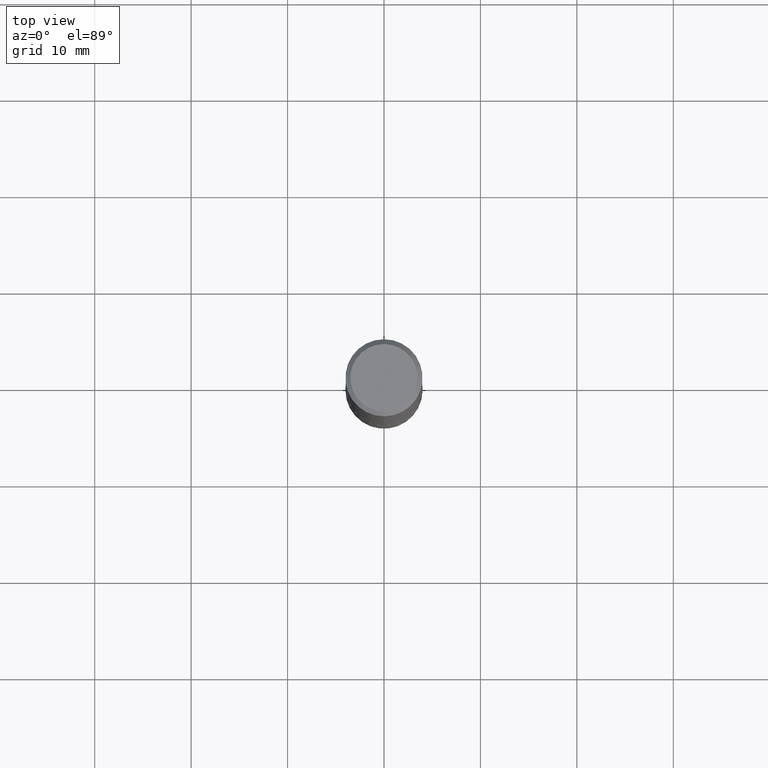
[diagram: clean part render]
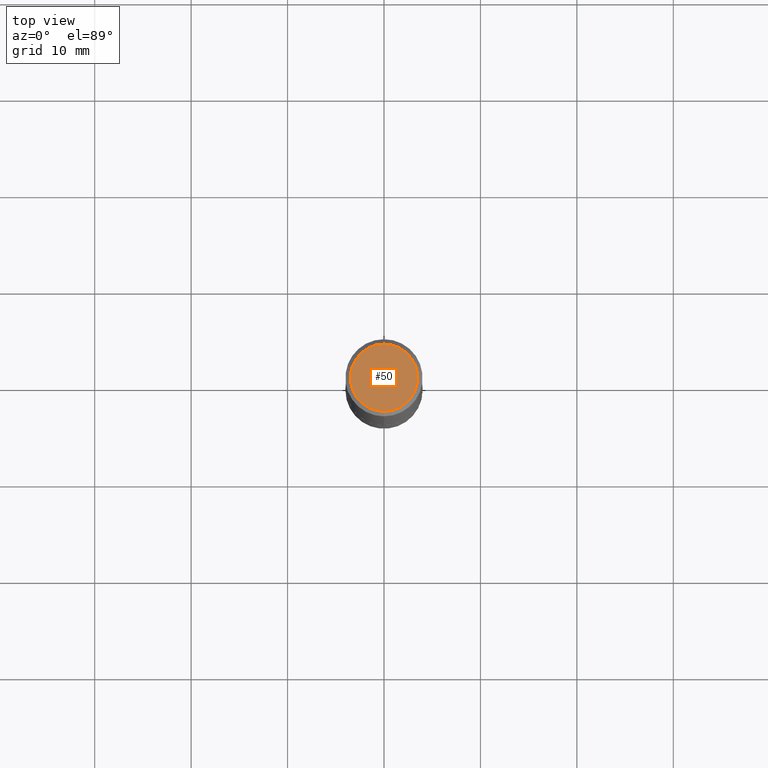
[diagram: same view with one face highlighted and labeled with its STEP entity id]
A machine part, top view. The second image highlights one B-rep face of the part: STEP entity #50.
In plain terms, the highlighted planar face has unit normal (0, -0, -1).
Its self-contained STEP definition (entity closure, byte-faithful):
#19 = ORIENTED_EDGE ( 'NONE', *, *, #216, .T. ) ;
#27 = EDGE_CURVE ( 'NONE', #293, #187, #278, .T. ) ;
#45 = CARTESIAN_POINT ( 'NONE',  ( -1.011923454671300053E-15, -0.1374999999999997891, 6.809117321244884418E-16 ) ) ;
#50 = ADVANCED_FACE ( 'NONE', ( #51 ), #183, .F. ) ;
#51 = FACE_OUTER_BOUND ( 'NONE', #379, .T. ) ;
#71 = DIRECTION ( 'NONE',  ( 2.444928043019069243E-29, -3.492255742475281487E-15, -1.000000000000000000 ) ) ;
#75 = DIRECTION ( 'NONE',  ( -2.444928043019069804E-29, 3.492255742475281487E-15, 1.000000000000000000 ) ) ;
#97 = ORIENTED_EDGE ( 'NONE', *, *, #27, .T. ) ;
#100 = CARTESIAN_POINT ( 'NONE',  ( 1.029986994958723788E-15, 0.1374999999999997891, -2.794585970562124091E-16 ) ) ;
#113 = DIRECTION ( 'NONE',  ( -6.982962677686265922E-15, -1.000000000000000000, 3.492255742475281487E-15 ) ) ;
#183 = PLANE ( 'NONE',  #305 ) ;
#187 = VERTEX_POINT ( 'NONE', #45 ) ;
#192 = DIRECTION ( 'NONE',  ( 6.982962677686265922E-15, 1.000000000000000000, -3.492255742475281487E-15 ) ) ;
#216 = EDGE_CURVE ( 'NONE', #187, #293, #273, .T. ) ;
#230 = CARTESIAN_POINT ( 'NONE',  ( -4.907620139431751550E-45, 7.009885081384458012E-31, 2.007265675341379917E-16 ) ) ;
#263 = DIRECTION ( 'NONE',  ( -2.444928043019069804E-29, 3.492255742475281487E-15, 1.000000000000000000 ) ) ;
#273 = CIRCLE ( 'NONE', #400, 0.1374999999999997891 ) ;
#278 = CIRCLE ( 'NONE', #295, 0.1374999999999997891 ) ;
#293 = VERTEX_POINT ( 'NONE', #100 ) ;
#295 = AXIS2_PLACEMENT_3D ( 'NONE', #230, #75, #322 ) ;
#305 = AXIS2_PLACEMENT_3D ( 'NONE', #374, #71, #192 ) ;
#322 = DIRECTION ( 'NONE',  ( -6.982962677686265922E-15, -1.000000000000000000, 3.492255742475281487E-15 ) ) ;
#374 = CARTESIAN_POINT ( 'NONE',  ( 9.601573681818600950E-16, 0.1374999999999997891, -3.798218808232814543E-16 ) ) ;
#379 = EDGE_LOOP ( 'NONE', ( #97, #19 ) ) ;
#400 = AXIS2_PLACEMENT_3D ( 'NONE', #403, #263, #113 ) ;
#403 = CARTESIAN_POINT ( 'NONE',  ( -4.907620139431751550E-45, 7.009885081384458012E-31, 2.007265675341379917E-16 ) ) ;